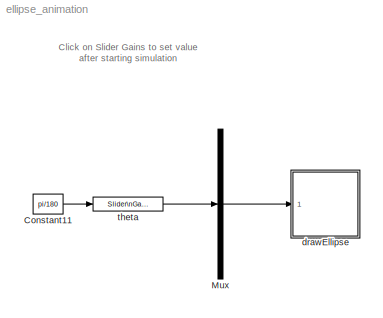
MODEL ellipse_animation
KIND model
BLOCK [Constant] Constant11
  SID = 2
  Value = pi/180
BLOCK [Mux] Mux
  DisplayOption = bar
  Inputs = 1
  Ports = [1, 1]
  SID = 3
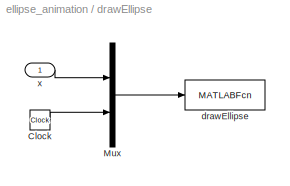
BLOCK [SubSystem] drawEllipse
  Ports = [1]
  RequestExecContextInheritance = off
  SID = 4
BLOCK [Clock] drawEllipse/Clock
  SID = 6
BLOCK [Mux] drawEllipse/Mux
  DisplayOption = bar
  Inputs = 2
  Ports = [2, 1]
  SID = 7
BLOCK [MATLABFcn] drawEllipse/drawEllipse
  MATLABFcn = drawEllipse(u)
  OutputDimensions = 0
  Ports = [1]
  SID = 8
  SampleTime = 0.1
BLOCK [Inport] drawEllipse/x
  IconDisplay = Port number
  SID = 5
BLOCK [Reference] theta  REF=simulink/Math\nOperations/Slider\nGain
  Ports = [1, 1]
  SID = 9
  SourceBlock = simulink/Math\nOperations/Slider\nGain
  SourceType = Slider Gain
  gain = 50.5163
  high = 180
  low = -180
ANNOTATION (root): Click on Slider Gains to set value \nafter starting simulation
LINE Constant11:1 -> theta:1
LINE Mux:1 -> drawEllipse:1
LINE drawEllipse/Clock:1 -> drawEllipse/Mux:2
LINE drawEllipse/Mux:1 -> drawEllipse/drawEllipse:1
LINE drawEllipse/x:1 -> drawEllipse/Mux:1
LINE theta:1 -> Mux:1
